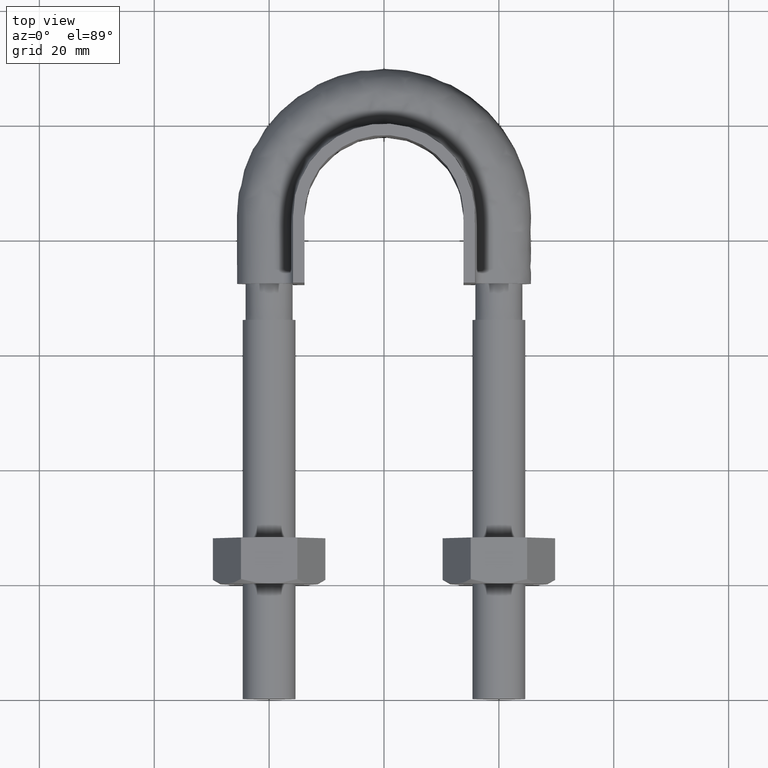
[diagram: clean part render]
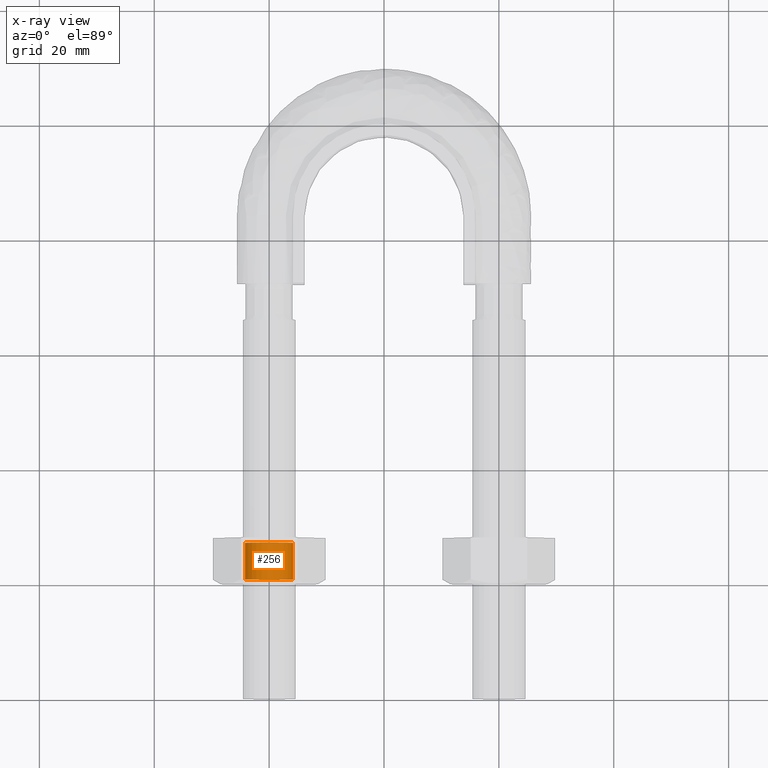
[diagram: x-ray — body ghosted, one internal face saturated and labeled with its STEP entity id]
A machine part, top view, then the same camera in x-ray: the body is ghosted and one INTERNAL B-rep face — a face not visible from any outside direction — is saturated and labeled: STEP entity #256.
In plain terms, the highlighted cylindrical surface (bore or boss wall) has radius 4.188 mm, axis along (-0, -1, -0).
Its self-contained STEP definition (entity closure, byte-faithful):
#256 = ADVANCED_FACE( '', ( #369, #370 ), #371, .F. );
#369 = FACE_OUTER_BOUND( '', #1391, .T. );
#370 = FACE_OUTER_BOUND( '', #1392, .T. );
#371 = CYLINDRICAL_SURFACE( '', #1393, 4.18800000000000 );
#1391 = EDGE_LOOP( '', ( #1726 ) );
#1392 = EDGE_LOOP( '', ( #1727 ) );
#1393 = AXIS2_PLACEMENT_3D( '', #1728, #1729, #1730 );
#1726 = ORIENTED_EDGE( '', *, *, #1982, .T. );
#1727 = ORIENTED_EDGE( '', *, *, #1981, .F. );
#1728 = CARTESIAN_POINT( '', ( -20.0000000000000, 28.0000000000000, 1.11228300875288E-015 ) );
#1729 = DIRECTION( '', ( -4.89842541528951E-016, -1.00000000000000, -6.12303176911189E-017 ) );
#1730 = DIRECTION( '', ( -0.866025403784439, 3.93600925972846E-016, 0.500000000000000 ) );
#1981 = EDGE_CURVE( '', #2157, #2157, #2158, .T. );
#1982 = EDGE_CURVE( '', #2159, #2159, #2160, .T. );
#2157 = VERTEX_POINT( '', #2643 );
#2158 = CIRCLE( '', #2644, 4.18800000000000 );
#2159 = VERTEX_POINT( '', #2645 );
#2160 = CIRCLE( '', #2646, 4.18800000000000 );
#2643 = CARTESIAN_POINT( '', ( -23.6269143910492, 20.8120000000000, 2.09400000000000 ) );
#2644 = AXIS2_PLACEMENT_3D( '', #2915, #2916, #2917 );
#2645 = CARTESIAN_POINT( '', ( -23.6269143910492, 27.1880000000000, 2.09400000000000 ) );
#2646 = AXIS2_PLACEMENT_3D( '', #2918, #2919, #2920 );
#2915 = CARTESIAN_POINT( '', ( -20.0000000000000, 20.8120000000000, 6.72159485189117E-016 ) );
#2916 = DIRECTION( '', ( 4.89842541528951E-016, 1.00000000000000, 6.12303176911189E-017 ) );
#2917 = DIRECTION( '', ( -0.866025403784439, 3.93600925972846E-016, 0.500000000000000 ) );
#2918 = CARTESIAN_POINT( '', ( -20.0000000000000, 27.1880000000000, 1.06256399078769E-015 ) );
#2919 = DIRECTION( '', ( 4.89842541528951E-016, 1.00000000000000, 6.12303176911189E-017 ) );
#2920 = DIRECTION( '', ( -0.866025403784439, 3.93600925972846E-016, 0.500000000000000 ) );